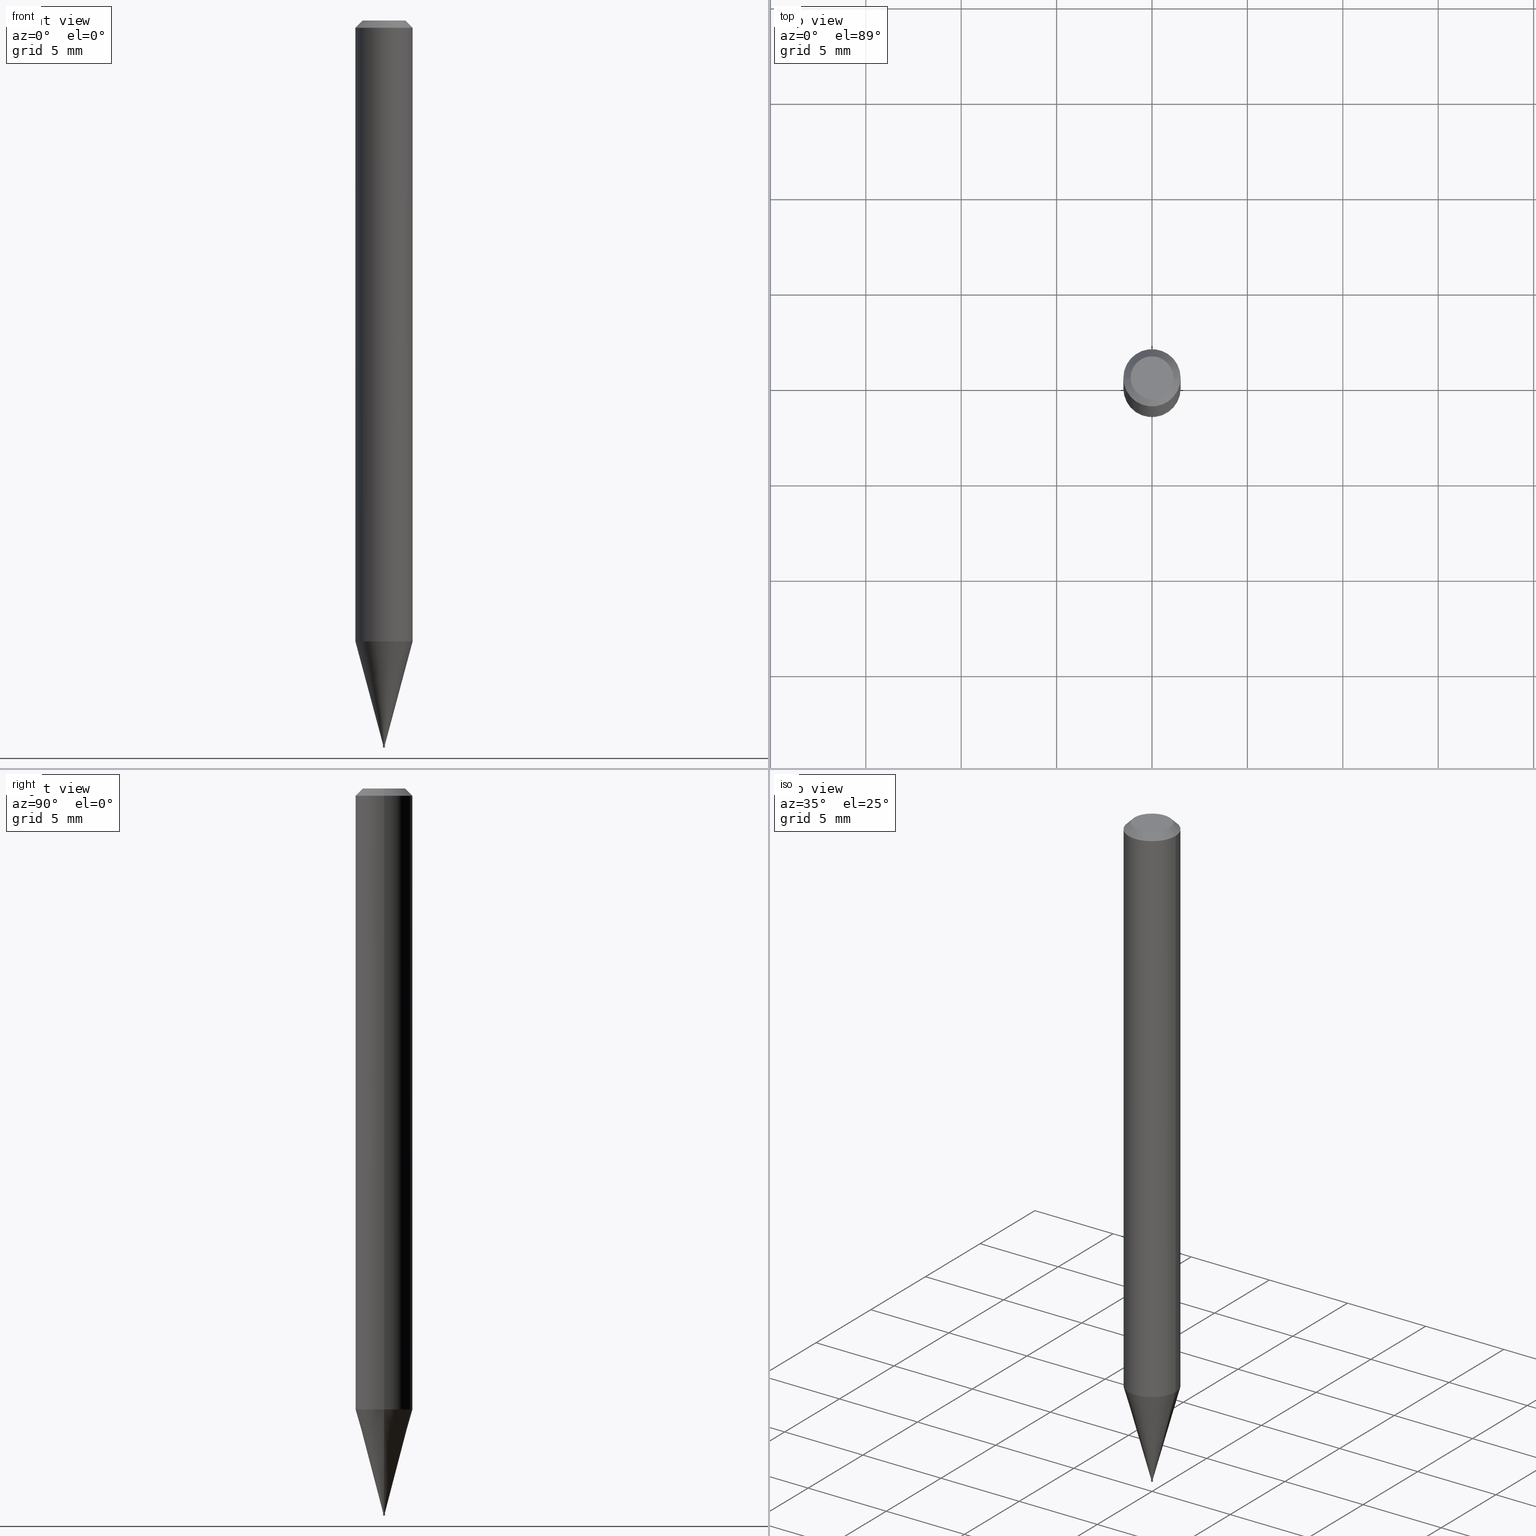
[diagram: canonical four-view strip — front | top / right | iso, engineering-drawing reading convention]
A machine part, canonical four-view strip (front | top / right | iso — engineering-drawing reading convention). The complete STEP part file that produces these views, byte-faithful:
ISO-10303-21;
HEADER;
FILE_DESCRIPTION (( 'STEP AP203' ),
    '1' );
FILE_NAME ('05002.STEP',
    '2024-03-14T17:36:36',
    ( '' ),
    ( '' ),
    'SwSTEP 2.0',
    'SolidWorks 2023',
    '' );
FILE_SCHEMA (( 'CONFIG_CONTROL_DESIGN' ));
ENDSEC;

DATA;
#1 = ORIENTED_EDGE ( 'NONE', *, *, #304, .T. ) ;
#2 = COORDINATED_UNIVERSAL_TIME_OFFSET ( 5, 0, .BEHIND. ) ;
#3 = ORIENTED_EDGE ( 'NONE', *, *, #143, .F. ) ;
#4 = DIRECTION ( 'NONE',  ( 1.000000000000000000, -6.982962677686266711E-15, 0.000000000000000000 ) ) ;
#5 = CIRCLE ( 'NONE', #436, 0.05904999999999999832 ) ;
#6 = CONICAL_SURFACE ( 'NONE', #362, 0.05904999999999999832, 0.7853981633974022047 ) ;
#7 = FACE_OUTER_BOUND ( 'NONE', #397, .T. ) ;
#8 = CARTESIAN_POINT ( 'NONE',  ( 3.576687321579069994E-29, -5.368277968210015545E-15, -1.500000000000000222 ) ) ;
#9 = ADVANCED_FACE ( 'NONE', ( #110 ), #335, .T. ) ;
#10 = FACE_OUTER_BOUND ( 'NONE', #461, .T. ) ;
#11 = CIRCLE ( 'NONE', #314, 0.05904999999999999832 ) ;
#12 = APPROVAL_DATE_TIME ( #43, #273 ) ;
#13 = DIRECTION ( 'NONE',  ( -2.445468806185136597E-29, 3.491481338843145583E-15, 1.000000000000000000 ) ) ;
#14 = CARTESIAN_POINT ( 'NONE',  ( 3.668203209277705088E-31, -5.237222008264718399E-17, -0.01499999999999999944 ) ) ;
#15 = ADVANCED_FACE ( 'NONE', ( #287 ), #435, .F. ) ;
#16 = CARTESIAN_POINT ( 'NONE',  ( 3.668203209277704895E-29, -5.237222008264718177E-15, -1.500000000000000222 ) ) ;
#17 = ORIENTED_EDGE ( 'NONE', *, *, #143, .T. ) ;
#18 = AXIS2_PLACEMENT_3D ( 'NONE', #16, #23, #51 ) ;
#19 = CARTESIAN_POINT ( 'NONE',  ( 0.05904999999999999138, -4.884931188144145618E-15, -1.280999898887817512 ) ) ;
#20 = ORIENTED_EDGE ( 'NONE', *, *, #126, .T. ) ;
#21 = DIRECTION ( 'NONE',  ( 2.445468806185136597E-29, -3.491481338843145583E-15, -1.000000000000000000 ) ) ;
#22 = EDGE_CURVE ( 'NONE', #245, #427, #211, .T. ) ;
#23 = DIRECTION ( 'NONE',  ( -2.445468806185136597E-29, 3.491481338843145583E-15, 1.000000000000000000 ) ) ;
#24 = ORIENTED_EDGE ( 'NONE', *, *, #413, .T. ) ;
#25 = EDGE_CURVE ( 'NONE', #208, #152, #5, .T. ) ;
#26 = APPROVAL_ROLE ( '' ) ;
#27 = AXIS2_PLACEMENT_3D ( 'NONE', #332, #168, #58 ) ;
#28 = ORIENTED_EDGE ( 'NONE', *, *, #406, .T. ) ;
#29 = APPROVAL_STATUS ( 'not_yet_approved' ) ;
#30 = CARTESIAN_POINT ( 'NONE',  ( 3.132645293456470975E-29, -4.472587242026771486E-15, -1.280999898887817512 ) ) ;
#31 =( LENGTH_UNIT ( ) NAMED_UNIT ( * ) SI_UNIT ( $, .METRE. ) );
#32 = DIRECTION ( 'NONE',  ( -2.445468806185136597E-29, 3.491481338843145583E-15, 1.000000000000000000 ) ) ;
#33 = EDGE_CURVE ( 'NONE', #104, #62, #267, .T. ) ;
#34 = CLOSED_SHELL ( 'NONE', ( #57, #127, #262, #418, #118, #9, #162, #370, #82, #358, #150, #444 ) ) ;
#35 = EDGE_LOOP ( 'NONE', ( #350, #133, #188, #423 ) ) ;
#36 = PERSON_AND_ORGANIZATION ( #109, #421 ) ;
#37 = DIRECTION ( 'NONE',  ( 1.000000000000000000, -6.982962677686433160E-15, 0.000000000000000000 ) ) ;
#38 = DIRECTION ( 'NONE',  ( 1.000000000000000000, -6.982962677686266711E-15, 0.000000000000000000 ) ) ;
#39 = DIRECTION ( 'NONE',  ( 1.000000000000000000, -6.982962677686266711E-15, 4.876176775795936353E-29 ) ) ;
#40 = AXIS2_PLACEMENT_3D ( 'NONE', #115, #196, #261 ) ;
#41 = VECTOR ( 'NONE', #175, 39.37007874015748854 ) ;
#42 = MANIFOLD_SOLID_BREP ( 'Body-Move/Copy2[1]', #354 ) ;
#43 = DATE_AND_TIME ( #219, #345 ) ;
#44 = CARTESIAN_POINT ( 'NONE',  ( -0.001949999999999999910, -5.213066554967809695E-15, -1.494099999999999984 ) ) ;
#45 = DIRECTION ( 'NONE',  ( 2.438088387897960049E-29, -3.491481338843145188E-15, -1.000000000000000000 ) ) ;
#46 = EDGE_CURVE ( 'NONE', #381, #152, #431, .T. ) ;
#47 = DIRECTION ( 'NONE',  ( 1.000000000000000000, -6.982962677686435527E-15, 0.000000000000000000 ) ) ;
#48 = VECTOR ( 'NONE', #419, 39.37007874015748143 ) ;
#49 = LOCAL_TIME ( 13, 36, 36.00000000000000000, #440 ) ;
#50 = DIRECTION ( 'NONE',  ( 1.000000000000000000, -6.982962677686266711E-15, 4.876176775795935793E-29 ) ) ;
#51 = DIRECTION ( 'NONE',  ( 1.000000000000000000, -6.982962677686144437E-15, 0.000000000000000000 ) ) ;
#52 = ORIENTED_EDGE ( 'NONE', *, *, #284, .F. ) ;
#53 = CARTESIAN_POINT ( 'NONE',  ( -0.001949999999999922715, -4.627889220789327606E-15, -1.494099999999999984 ) ) ;
#54 = ORIENTED_EDGE ( 'NONE', *, *, #238, .F. ) ;
#55 = AXIS2_PLACEMENT_3D ( 'NONE', #439, #13, #81 ) ;
#56 = CARTESIAN_POINT ( 'NONE',  ( -0.001949999999999922715, 1.385558334732140448E-17, -9.591923425996686822E-32 ) ) ;
#57 = ADVANCED_FACE ( 'NONE', ( #212 ), #317, .F. ) ;
#58 = DIRECTION ( 'NONE',  ( 1.000000000000000000, -6.982962677686159425E-15, 0.000000000000000000 ) ) ;
#59 = ORIENTED_EDGE ( 'NONE', *, *, #111, .T. ) ;
#60 = DIRECTION ( 'NONE',  ( -1.000000000000000000, 6.982962677686266711E-15, 0.000000000000000000 ) ) ;
#61 = EDGE_CURVE ( 'NONE', #432, #275, #113, .T. ) ;
#62 = VERTEX_POINT ( 'NONE', #367 ) ;
#63 = EDGE_CURVE ( 'NONE', #62, #104, #79, .T. ) ;
#64 = APPROVAL_DATE_TIME ( #240, #264 ) ;
#65 = AXIS2_PLACEMENT_3D ( 'NONE', #190, #283, #37 ) ;
#66 = VERTEX_POINT ( 'NONE', #407 ) ;
#67 = CIRCLE ( 'NONE', #466, 0.001950000000000004030 ) ;
#68 = CARTESIAN_POINT ( 'NONE',  ( 3.653774943321212865E-29, -5.216622268365544435E-15, -1.494099999999999984 ) ) ;
#69 = DIRECTION ( 'NONE',  ( -2.445468806185136877E-29, 3.491481338843145188E-15, 1.000000000000000000 ) ) ;
#70 = CARTESIAN_POINT ( 'NONE',  ( 1.361677722152475500E-17, 0.001949999999994783163, -1.494099999999999984 ) ) ;
#71 = APPLICATION_PROTOCOL_DEFINITION ( 'international standard', 'config_control_design', 1994, #117 ) ;
#72 = VERTEX_POINT ( 'NONE', #44 ) ;
#73 = CIRCLE ( 'NONE', #103, 0.001949999999999999910 ) ;
#74 = EDGE_CURVE ( 'NONE', #152, #208, #408, .T. ) ;
#75 = EDGE_LOOP ( 'NONE', ( #286, #234 ) ) ;
#76 = PERSON_AND_ORGANIZATION_ROLE ( 'design_supplier' ) ;
#77 = LINE ( 'NONE', #323, #428 ) ;
#78 = CARTESIAN_POINT ( 'NONE',  ( 3.653774943321212865E-29, -5.216622268365544435E-15, -1.494099999999999984 ) ) ;
#79 = CIRCLE ( 'NONE', #148, 0.001449999999999999900 ) ;
#80 = PERSON_AND_ORGANIZATION_ROLE ( 'classification_officer' ) ;
#81 = DIRECTION ( 'NONE',  ( 1.000000000000000000, -6.982962677686265922E-15, 4.957392940945096353E-29 ) ) ;
#82 = ADVANCED_FACE ( 'NONE', ( #10 ), #293, .F. ) ;
#83 = PERSON_AND_ORGANIZATION ( #109, #421 ) ;
#84 = CARTESIAN_POINT ( 'NONE',  ( -0.05904999999999999832, -1.842904245588369987E-15, -0.01499999999999999944 ) ) ;
#85 = DIRECTION ( 'NONE',  ( -2.445468806185136597E-29, 3.491481338843145583E-15, 1.000000000000000000 ) ) ;
#86 = CIRCLE ( 'NONE', #137, 0.001949999999999922715 ) ;
#87 = CC_DESIGN_APPROVAL ( #264, ( #236 ) ) ;
#88 = DIRECTION ( 'NONE',  ( -2.445468806185136597E-29, 3.491481338843145583E-15, 1.000000000000000000 ) ) ;
#89 = EDGE_LOOP ( 'NONE', ( #386, #463, #135, #341 ) ) ;
#90 = APPLICATION_CONTEXT ( 'configuration controlled 3d designs of mechanical parts and assemblies' ) ;
#91 = DIRECTION ( 'NONE',  ( -2.445468806185136597E-29, 3.491481338843145583E-15, 1.000000000000000000 ) ) ;
#92 = ORIENTED_EDGE ( 'NONE', *, *, #364, .F. ) ;
#93 = LINE ( 'NONE', #56, #243 ) ;
#94 = DESIGN_CONTEXT ( 'detailed design', #117, 'design' ) ;
#95 = VERTEX_POINT ( 'NONE', #191 ) ;
#96 = AXIS2_PLACEMENT_3D ( 'NONE', #446, #120, #4 ) ;
#97 = FACE_OUTER_BOUND ( 'NONE', #145, .T. ) ;
#98 = CARTESIAN_POINT ( 'NONE',  ( -0.001949999999999922715, -5.201020944348800926E-15, -1.493600000000000261 ) ) ;
#99 = ORIENTED_EDGE ( 'NONE', *, *, #385, .T. ) ;
#100 = PERSON_AND_ORGANIZATION ( #109, #421 ) ;
#101 = ORIENTED_EDGE ( 'NONE', *, *, #318, .T. ) ;
#102 = DIRECTION ( 'NONE',  ( 1.000000000000000000, -6.982962677686435527E-15, 0.000000000000000000 ) ) ;
#103 = AXIS2_PLACEMENT_3D ( 'NONE', #454, #377, #410 ) ;
#104 = VERTEX_POINT ( 'NONE', #325 ) ;
#105 = MECHANICAL_CONTEXT ( 'NONE', #90, 'mechanical' ) ;
#106 = CARTESIAN_POINT ( 'NONE',  ( 0.000000000000000000, 0.000000000000000000, 0.000000000000000000 ) ) ;
#107 = PERSON_AND_ORGANIZATION_ROLE ( 'design_owner' ) ;
#108 = CC_DESIGN_DATE_AND_TIME_ASSIGNMENT ( #260, #359, ( #336 ) ) ;
#109 = PERSON ( 'UNSPECIFIED', 'UNSPECIFIED', 'UNSPECIFIED', ('UNSPECIFIED'), ('UNSPECIFIED'), ('UNSPECIFIED') ) ;
#110 = FACE_OUTER_BOUND ( 'NONE', #347, .T. ) ;
#111 = EDGE_CURVE ( 'NONE', #62, #275, #167, .T. ) ;
#112 = ORIENTED_EDGE ( 'NONE', *, *, #304, .F. ) ;
#113 = CIRCLE ( 'NONE', #197, 0.001949999999999922715 ) ;
#114 = CC_DESIGN_SECURITY_CLASSIFICATION ( #336, ( #282 ) ) ;
#115 = CARTESIAN_POINT ( 'NONE',  ( 3.653774943321212865E-29, -5.216622268365544435E-15, -1.494099999999999984 ) ) ;
#116 = CC_DESIGN_PERSON_AND_ORGANIZATION_ASSIGNMENT ( #365, #80, ( #336 ) ) ;
#117 = APPLICATION_CONTEXT ( 'configuration controlled 3d designs of mechanical parts and assemblies' ) ;
#118 = ADVANCED_FACE ( 'NONE', ( #366 ), #295, .T. ) ;
#119 = PERSON_AND_ORGANIZATION_ROLE ( 'creator' ) ;
#120 = DIRECTION ( 'NONE',  ( -2.445468806185136597E-29, 3.491481338843145583E-15, 1.000000000000000000 ) ) ;
#121 = DATE_AND_TIME ( #253, #49 ) ;
#122 = FACE_OUTER_BOUND ( 'NONE', #89, .T. ) ;
#123 = PERSON_AND_ORGANIZATION ( #109, #421 ) ;
#124 = DIRECTION ( 'NONE',  ( 1.000000000000000000, -6.982962677686433160E-15, 0.000000000000000000 ) ) ;
#125 = CARTESIAN_POINT ( 'NONE',  ( 0.000000000000000000, 0.000000000000000000, 0.000000000000000000 ) ) ;
#126 = EDGE_CURVE ( 'NONE', #275, #432, #86, .T. ) ;
#127 = ADVANCED_FACE ( 'NONE', ( #442 ), #163, .T. ) ;
#128 = FACE_OUTER_BOUND ( 'NONE', #376, .T. ) ;
#129 = VECTOR ( 'NONE', #278, 39.37007874015748143 ) ;
#130 = CARTESIAN_POINT ( 'NONE',  ( -0.04404999999999999888, 3.337856159934058298E-16, 1.385648594563828748E-15 ) ) ;
#131 = ORIENTED_EDGE ( 'NONE', *, *, #46, .F. ) ;
#132 = CARTESIAN_POINT ( 'NONE',  ( 0.001950000000000002079, -1.361677722148823474E-17, 9.508544712802084947E-32 ) ) ;
#133 = ORIENTED_EDGE ( 'NONE', *, *, #318, .F. ) ;
#134 = CARTESIAN_POINT ( 'NONE',  ( 3.653774943321212865E-29, -5.216622268365544435E-15, -1.494099999999999984 ) ) ;
#135 = ORIENTED_EDGE ( 'NONE', *, *, #384, .T. ) ;
#136 = ADVANCED_FACE ( 'NONE', ( #399 ), #194, .F. ) ;
#137 = AXIS2_PLACEMENT_3D ( 'NONE', #363, #324, #199 ) ;
#138 = LOCAL_TIME ( 13, 36, 36.00000000000000000, #342 ) ;
#139 = CARTESIAN_POINT ( 'NONE',  ( 0.05904999999999999832, -4.647161662000212105E-16, -0.01499999999999999944 ) ) ;
#140 = ORIENTED_EDGE ( 'NONE', *, *, #299, .T. ) ;
#141 = DIRECTION ( 'NONE',  ( -2.445468806185136597E-29, 3.491481338843145583E-15, 1.000000000000000000 ) ) ;
#142 = VERTEX_POINT ( 'NONE', #160 ) ;
#143 = EDGE_CURVE ( 'NONE', #427, #152, #296, .T. ) ;
#144 = APPROVAL_ROLE ( '' ) ;
#145 = EDGE_LOOP ( 'NONE', ( #313, #415, #1, #52 ) ) ;
#146 = CARTESIAN_POINT ( 'NONE',  ( 0.000000000000000000, 0.000000000000000000, 0.000000000000000000 ) ) ;
#147 = VECTOR ( 'NONE', #200, 39.37007874015747433 ) ;
#148 = AXIS2_PLACEMENT_3D ( 'NONE', #403, #226, #124 ) ;
#149 = DIRECTION ( 'NONE',  ( 1.000000000000000000, -6.982962677686435527E-15, 0.000000000000000000 ) ) ;
#150 = ADVANCED_FACE ( 'NONE', ( #122 ), #344, .T. ) ;
#151 = APPLICATION_PROTOCOL_DEFINITION ( 'international standard', 'config_control_design', 1994, #90 ) ;
#152 = VERTEX_POINT ( 'NONE', #84 ) ;
#153 = CARTESIAN_POINT ( 'NONE',  ( -0.001950000000000002079, 1.385558334732196840E-17, -9.591923425997076558E-32 ) ) ;
#154 = ORIENTED_EDGE ( 'NONE', *, *, #61, .F. ) ;
#155 = FACE_OUTER_BOUND ( 'NONE', #458, .T. ) ;
#156 = VECTOR ( 'NONE', #255, 39.37007874015748854 ) ;
#157 = CIRCLE ( 'NONE', #258, 0.001949999999999922715 ) ;
#158 = EDGE_CURVE ( 'NONE', #381, #417, #387, .T. ) ;
#159 = DIRECTION ( 'NONE',  ( -2.445468806185136877E-29, 3.491481338843145188E-15, 1.000000000000000000 ) ) ;
#160 = CARTESIAN_POINT ( 'NONE',  ( 0.001949999999999999910, -5.230239045587032162E-15, -1.494099999999999984 ) ) ;
#161 = DIRECTION ( 'NONE',  ( 1.000000000000000000, -6.982962677686435527E-15, 0.000000000000000000 ) ) ;
#162 = ADVANCED_FACE ( 'NONE', ( #7 ), #328, .T. ) ;
#163 = CONICAL_SURFACE ( 'NONE', #40, 0.001449999999999999900, 0.7853981633974720378 ) ;
#164 = LOCAL_TIME ( 13, 36, 36.00000000000000000, #288 ) ;
#165 = DIMENSIONAL_EXPONENTS ( 1.000000000000000000, 0.000000000000000000, 0.000000000000000000, 0.000000000000000000, 0.000000000000000000, 0.000000000000000000, 0.000000000000000000 ) ;
#166 = ADVANCED_FACE ( 'NONE', ( #155 ), #222, .T. ) ;
#167 = LINE ( 'NONE', #263, #156 ) ;
#168 = DIRECTION ( 'NONE',  ( -2.445468806185136597E-29, 3.491481338843145583E-15, 1.000000000000000000 ) ) ;
#169 = CARTESIAN_POINT ( 'NONE',  ( -0.001949999999999922715, -5.202766685018222429E-15, -1.494099999999999984 ) ) ;
#170 = EDGE_LOOP ( 'NONE', ( #101, #394, #320, #92 ) ) ;
#171 = CIRCLE ( 'NONE', #184, 0.001949999999999922715 ) ;
#172 = LOCAL_TIME ( 13, 36, 36.00000000000000000, #2 ) ;
#173 = FACE_OUTER_BOUND ( 'NONE', #334, .T. ) ;
#174 = EDGE_LOOP ( 'NONE', ( #383, #28, #20, #390 ) ) ;
#175 = DIRECTION ( 'NONE',  ( 0.7071067811865642261, -2.468850131082432188E-15, 0.7071067811865306973 ) ) ;
#176 = EDGE_CURVE ( 'NONE', #427, #245, #11, .T. ) ;
#177 = DIRECTION ( 'NONE',  ( -1.000000000000000000, 6.982962677686266711E-15, 0.000000000000000000 ) ) ;
#178 = ORIENTED_EDGE ( 'NONE', *, *, #409, .T. ) ;
#179 = CALENDAR_DATE ( 2024, 14, 3 ) ;
#180 = DIRECTION ( 'NONE',  ( 1.000000000000000000, -6.982962677686267499E-15, 4.876176775795936353E-29 ) ) ;
#181 = EDGE_LOOP ( 'NONE', ( #251, #59, #154, #392 ) ) ;
#182 = DIRECTION ( 'NONE',  ( -2.445468806185136597E-29, 3.491481338843145583E-15, 1.000000000000000000 ) ) ;
#183 = CARTESIAN_POINT ( 'NONE',  ( 3.668203209277705088E-31, -5.237222008264718399E-17, -0.01499999999999999944 ) ) ;
#184 = AXIS2_PLACEMENT_3D ( 'NONE', #229, #300, #271 ) ;
#185 = APPROVAL_PERSON_ORGANIZATION ( #100, #353, #144 ) ;
#186 = EDGE_LOOP ( 'NONE', ( #452, #17, #230, #310 ) ) ;
#187 = CARTESIAN_POINT ( 'NONE',  ( 0.000000000000000000, 0.000000000000000000, 0.000000000000000000 ) ) ;
#188 = ORIENTED_EDGE ( 'NONE', *, *, #205, .T. ) ;
#189 = CALENDAR_DATE ( 2024, 14, 3 ) ;
#190 = CARTESIAN_POINT ( 'NONE',  ( 3.653774943321212865E-29, -5.216622268365544435E-15, -1.494099999999999984 ) ) ;
#191 = CARTESIAN_POINT ( 'NONE',  ( 0.001949999999999922715, -5.230239045587032162E-15, -1.494099999999999984 ) ) ;
#192 = VECTOR ( 'NONE', #233, 39.37007874015748143 ) ;
#193 = CARTESIAN_POINT ( 'NONE',  ( 3.075995059520799729E-16, 0.04404999999999999888, 5.390245443058748806E-16 ) ) ;
#194 = PLANE ( 'NONE',  #420 ) ;
#195 = CC_DESIGN_PERSON_AND_ORGANIZATION_ASSIGNMENT ( #326, #76, ( #282 ) ) ;
#196 = DIRECTION ( 'NONE',  ( -2.445468806185136597E-29, 3.491481338843145583E-15, 1.000000000000000000 ) ) ;
#197 = AXIS2_PLACEMENT_3D ( 'NONE', #247, #280, #47 ) ;
#198 = VECTOR ( 'NONE', #69, 39.37007874015748143 ) ;
#199 = DIRECTION ( 'NONE',  ( 1.000000000000000000, -6.982962677686435527E-15, 0.000000000000000000 ) ) ;
#200 = DIRECTION ( 'NONE',  ( 0.2588190451025213501, 1.565188264969621968E-15, 0.9659258262890682012 ) ) ;
#201 = ORIENTED_EDGE ( 'NONE', *, *, #176, .T. ) ;
#202 = DIRECTION ( 'NONE',  ( 2.445468806185136597E-29, -3.491481338843145583E-15, -1.000000000000000000 ) ) ;
#203 = ORIENTED_EDGE ( 'NONE', *, *, #371, .T. ) ;
#204 = AXIS2_PLACEMENT_3D ( 'NONE', #125, #254, #50 ) ;
#205 = EDGE_CURVE ( 'NONE', #95, #432, #77, .T. ) ;
#206 = DIRECTION ( 'NONE',  ( -2.445468806185136877E-29, 3.491481338843145188E-15, 1.000000000000000000 ) ) ;
#207 = CYLINDRICAL_SURFACE ( 'NONE', #242, 0.001950000000000002079 ) ;
#208 = VERTEX_POINT ( 'NONE', #139 ) ;
#209 = PERSON_AND_ORGANIZATION_ROLE ( 'creator' ) ;
#210 = VERTEX_POINT ( 'NONE', #53 ) ;
#211 = CIRCLE ( 'NONE', #256, 0.05904999999999999832 ) ;
#212 = FACE_OUTER_BOUND ( 'NONE', #174, .T. ) ;
#213 = ORIENTED_EDGE ( 'NONE', *, *, #238, .T. ) ;
#214 = CYLINDRICAL_SURFACE ( 'NONE', #250, 0.05904999999999999832 ) ;
#215 = DIRECTION ( 'NONE',  ( 1.000000000000000000, -6.982962677686273021E-15, 0.000000000000000000 ) ) ;
#216 = FACE_OUTER_BOUND ( 'NONE', #186, .T. ) ;
#217 = AXIS2_PLACEMENT_3D ( 'NONE', #360, #257, #405 ) ;
#218 = DIRECTION ( 'NONE',  ( -2.445468806185136597E-29, 3.491481338843145583E-15, 1.000000000000000000 ) ) ;
#219 = CALENDAR_DATE ( 2024, 14, 3 ) ;
#220 = DIRECTION ( 'NONE',  ( 2.438088387897960049E-29, -3.491481338843145188E-15, -1.000000000000000000 ) ) ;
#221 = DIRECTION ( 'NONE',  ( -2.445468806185136877E-29, 3.491481338843145188E-15, 1.000000000000000000 ) ) ;
#222 = CYLINDRICAL_SURFACE ( 'NONE', #204, 0.001950000000000002079 ) ;
#223 = CIRCLE ( 'NONE', #27, 0.001949999999999999910 ) ;
#224 = APPROVAL_STATUS ( 'not_yet_approved' ) ;
#225 = DIRECTION ( 'NONE',  ( 1.000000000000000000, -6.982962677686273021E-15, 0.000000000000000000 ) ) ;
#226 = DIRECTION ( 'NONE',  ( -2.445468806185136597E-29, 3.491481338843145583E-15, 1.000000000000000000 ) ) ;
#227 = ADVANCED_FACE ( 'NONE', ( #97 ), #207, .T. ) ;
#228 = DIRECTION ( 'NONE',  ( -2.438088387897960049E-29, 3.491481338843145188E-15, 1.000000000000000000 ) ) ;
#229 = CARTESIAN_POINT ( 'NONE',  ( 3.653774943321212865E-29, -5.216622268365544435E-15, -1.494099999999999984 ) ) ;
#230 = ORIENTED_EDGE ( 'NONE', *, *, #25, .F. ) ;
#231 = DIRECTION ( 'NONE',  ( 1.000000000000000000, -6.982962677686144437E-15, 0.000000000000000000 ) ) ;
#232 = ORIENTED_EDGE ( 'NONE', *, *, #33, .F. ) ;
#233 = DIRECTION ( 'NONE',  ( 0.7071067811865149322, -7.319954787623147183E-15, -0.7071067811865801023 ) ) ;
#234 = ORIENTED_EDGE ( 'NONE', *, *, #340, .F. ) ;
#235 = DIRECTION ( 'NONE',  ( 1.000000000000000000, -6.982962677686266711E-15, 4.876176775795935793E-29 ) ) ;
#236 = PRODUCT_DEFINITION ( 'UNKNOWN', '', #282, #94 ) ;
#237 = CARTESIAN_POINT ( 'NONE',  ( -3.388560414340124120E-44, 4.837966210113847534E-30, 1.385648594563830917E-15 ) ) ;
#238 = EDGE_CURVE ( 'NONE', #417, #208, #339, .T. ) ;
#239 = ORIENTED_EDGE ( 'NONE', *, *, #74, .T. ) ;
#240 = DATE_AND_TIME ( #434, #172 ) ;
#241 = ORIENTED_EDGE ( 'NONE', *, *, #46, .T. ) ;
#242 = AXIS2_PLACEMENT_3D ( 'NONE', #375, #276, #235 ) ;
#243 = VECTOR ( 'NONE', #206, 39.37007874015748143 ) ;
#244 = CARTESIAN_POINT ( 'NONE',  ( -0.05904999999999999138, -4.053011756560431993E-15, -1.280999898887817512 ) ) ;
#245 = VERTEX_POINT ( 'NONE', #19 ) ;
#246 =( NAMED_UNIT ( * ) SI_UNIT ( $, .STERADIAN. ) SOLID_ANGLE_UNIT ( ) );
#247 = CARTESIAN_POINT ( 'NONE',  ( 3.652552208918120063E-29, -5.214876527696122931E-15, -1.493600000000000261 ) ) ;
#248 = ORIENTED_EDGE ( 'NONE', *, *, #284, .T. ) ;
#249 = PERSON_AND_ORGANIZATION ( #109, #421 ) ;
#250 = AXIS2_PLACEMENT_3D ( 'NONE', #187, #351, #391 ) ;
#251 = ORIENTED_EDGE ( 'NONE', *, *, #33, .T. ) ;
#252 = CC_DESIGN_PERSON_AND_ORGANIZATION_ASSIGNMENT ( #249, #209, ( #236 ) ) ;
#253 = CALENDAR_DATE ( 2024, 14, 3 ) ;
#254 = DIRECTION ( 'NONE',  ( -2.445468806185136597E-29, 3.491481338843145583E-15, 1.000000000000000000 ) ) ;
#255 = DIRECTION ( 'NONE',  ( -0.7071067811865642261, 7.493145998870414114E-15, 0.7071067811865306973 ) ) ;
#256 = AXIS2_PLACEMENT_3D ( 'NONE', #30, #32, #215 ) ;
#257 = DIRECTION ( 'NONE',  ( -2.445468806185136597E-29, 3.491481338843145583E-15, 1.000000000000000000 ) ) ;
#258 = AXIS2_PLACEMENT_3D ( 'NONE', #337, #182, #102 ) ;
#259 = UNCERTAINTY_MEASURE_WITH_UNIT (LENGTH_MEASURE( 1.000000000000000082E-05 ), #426, 'distance_accuracy_value', 'NONE');
#260 = DATE_AND_TIME ( #189, #164 ) ;
#261 = DIRECTION ( 'NONE',  ( 1.000000000000000000, -6.982962677686433160E-15, 0.000000000000000000 ) ) ;
#262 = ADVANCED_FACE ( 'NONE', ( #372 ), #457, .T. ) ;
#263 = CARTESIAN_POINT ( 'NONE',  ( -0.001449999999999999900, -5.206319398697022539E-15, -1.494099999999999984 ) ) ;
#264 = APPROVAL ( #319, 'UNSPECIFIED' ) ;
#265 = CARTESIAN_POINT ( 'NONE',  ( -0.001950000000000004030, -5.213066554967809695E-15, -1.500000000000000222 ) ) ;
#266 = EDGE_LOOP ( 'NONE', ( #338, #248 ) ) ;
#267 = CIRCLE ( 'NONE', #65, 0.001449999999999999900 ) ;
#268 = APPROVAL_PERSON_ORGANIZATION ( #83, #273, #292 ) ;
#269 = LINE ( 'NONE', #416, #41 ) ;
#270 = ORIENTED_EDGE ( 'NONE', *, *, #63, .F. ) ;
#271 = DIRECTION ( 'NONE',  ( 1.000000000000000000, -6.982962677686435527E-15, 0.000000000000000000 ) ) ;
#272 = ORIENTED_EDGE ( 'NONE', *, *, #329, .F. ) ;
#273 = APPROVAL ( #224, 'UNSPECIFIED' ) ;
#274 = CARTESIAN_POINT ( 'NONE',  ( 0.001949999999999922715, -5.230239045587032162E-15, -1.494099999999999984 ) ) ;
#275 = VERTEX_POINT ( 'NONE', #98 ) ;
#276 = DIRECTION ( 'NONE',  ( -2.445468806185136597E-29, 3.491481338843145583E-15, 1.000000000000000000 ) ) ;
#277 = ORIENTED_EDGE ( 'NONE', *, *, #158, .T. ) ;
#278 = DIRECTION ( 'NONE',  ( -0.7071067811865149322, 2.468850131081915484E-15, -0.7071067811865801023 ) ) ;
#279 = LENGTH_MEASURE_WITH_UNIT ( LENGTH_MEASURE( 0.02539999999999999897 ), #31 );
#280 = DIRECTION ( 'NONE',  ( -2.445468806185136597E-29, 3.491481338843145583E-15, 1.000000000000000000 ) ) ;
#281 = AXIS2_PLACEMENT_3D ( 'NONE', #134, #382, #302 ) ;
#282 = PRODUCT_DEFINITION_FORMATION_WITH_SPECIFIED_SOURCE ( 'ANY', '', #433, .NOT_KNOWN. ) ;
#283 = DIRECTION ( 'NONE',  ( -2.445468806185136597E-29, 3.491481338843145583E-15, 1.000000000000000000 ) ) ;
#284 = EDGE_CURVE ( 'NONE', #72, #142, #73, .T. ) ;
#285 = PERSON_AND_ORGANIZATION ( #109, #421 ) ;
#286 = ORIENTED_EDGE ( 'NONE', *, *, #385, .F. ) ;
#287 = FACE_OUTER_BOUND ( 'NONE', #266, .T. ) ;
#288 = COORDINATED_UNIVERSAL_TIME_OFFSET ( 5, 0, .BEHIND. ) ;
#289 = CARTESIAN_POINT ( 'NONE',  ( 3.132645293456470975E-29, -4.472587242026771486E-15, -1.280999898887817512 ) ) ;
#290 = CARTESIAN_POINT ( 'NONE',  ( -0.05904999999999999832, 4.195754854663391478E-16, -2.904631170795521892E-30 ) ) ;
#291 = CC_DESIGN_PERSON_AND_ORGANIZATION_ASSIGNMENT ( #285, #107, ( #433 ) ) ;
#292 = APPROVAL_ROLE ( '' ) ;
#293 = PLANE ( 'NONE',  #378 ) ;
#294 = APPROVAL_DATE_TIME ( #121, #353 ) ;
#295 = CONICAL_SURFACE ( 'NONE', #322, 0.001949999999999922715, 0.2617993877991500740 ) ;
#296 = LINE ( 'NONE', #290, #401 ) ;
#297 = CARTESIAN_POINT ( 'NONE',  ( 0.000000000000000000, 0.000000000000000000, 0.000000000000000000 ) ) ;
#298 = DIRECTION ( 'NONE',  ( -2.445468806185136877E-29, 3.491481338843145188E-15, 1.000000000000000000 ) ) ;
#299 = EDGE_CURVE ( 'NONE', #417, #381, #361, .T. ) ;
#300 = DIRECTION ( 'NONE',  ( -2.445468806185136597E-29, 3.491481338843145583E-15, 1.000000000000000000 ) ) ;
#301 = ORIENTED_EDGE ( 'NONE', *, *, #364, .T. ) ;
#302 = DIRECTION ( 'NONE',  ( 1.000000000000000000, -6.982962677686265922E-15, 4.876176775795935793E-29 ) ) ;
#303 = DIRECTION ( 'NONE',  ( 1.000000000000000000, -6.982962677686265922E-15, 4.957392940945096353E-29 ) ) ;
#304 = EDGE_CURVE ( 'NONE', #66, #142, #380, .T. ) ;
#305 = PLANE ( 'NONE',  #281 ) ;
#306 = ORIENTED_EDGE ( 'NONE', *, *, #374, .F. ) ;
#307 = VECTOR ( 'NONE', #298, 39.37007874015748143 ) ;
#308 = CC_DESIGN_APPROVAL ( #273, ( #336 ) ) ;
#309 = CYLINDRICAL_SURFACE ( 'NONE', #437, 0.001949999999999922715 ) ;
#310 = ORIENTED_EDGE ( 'NONE', *, *, #371, .F. ) ;
#311 = DIRECTION ( 'NONE',  ( 1.000000000000000000, 0.000000000000000000, 0.000000000000000000 ) ) ;
#312 = DIRECTION ( 'NONE',  ( -2.445468806185136597E-29, 3.491481338843145583E-15, 1.000000000000000000 ) ) ;
#313 = ORIENTED_EDGE ( 'NONE', *, *, #413, .F. ) ;
#314 = AXIS2_PLACEMENT_3D ( 'NONE', #289, #438, #225 ) ;
#315 = VECTOR ( 'NONE', #451, 39.37007874015747433 ) ;
#316 = LINE ( 'NONE', #153, #198 ) ;
#317 = CYLINDRICAL_SURFACE ( 'NONE', #465, 0.001949999999999922715 ) ;
#318 = EDGE_CURVE ( 'NONE', #95, #210, #171, .T. ) ;
#319 = APPROVAL_STATUS ( 'not_yet_approved' ) ;
#320 = ORIENTED_EDGE ( 'NONE', *, *, #22, .F. ) ;
#321 = CARTESIAN_POINT ( 'NONE',  ( -0.05904999999999999832, 3.599717260347268549E-16, -0.01499999999999999944 ) ) ;
#322 = AXIS2_PLACEMENT_3D ( 'NONE', #78, #447, #161 ) ;
#323 = CARTESIAN_POINT ( 'NONE',  ( 0.001949999999999922715, -1.361677722148768161E-17, 9.508544712801698495E-32 ) ) ;
#324 = DIRECTION ( 'NONE',  ( -2.445468806185136597E-29, 3.491481338843145583E-15, 1.000000000000000000 ) ) ;
#325 = CARTESIAN_POINT ( 'NONE',  ( 0.001449999999999999900, -5.226747564248189155E-15, -1.494099999999999984 ) ) ;
#326 = PERSON_AND_ORGANIZATION ( #109, #421 ) ;
#327 = CIRCLE ( 'NONE', #18, 0.001950000000000004030 ) ;
#328 = CYLINDRICAL_SURFACE ( 'NONE', #395, 0.05904999999999999832 ) ;
#329 = EDGE_CURVE ( 'NONE', #142, #72, #223, .T. ) ;
#330 = LINE ( 'NONE', #274, #147 ) ;
#331 = LINE ( 'NONE', #169, #315 ) ;
#332 = CARTESIAN_POINT ( 'NONE',  ( 3.653774943321212865E-29, -5.216622268365544435E-15, -1.494099999999999984 ) ) ;
#333 = AXIS2_PLACEMENT_3D ( 'NONE', #237, #88, #303 ) ;
#334 = EDGE_LOOP ( 'NONE', ( #232, #270 ) ) ;
#335 = CONICAL_SURFACE ( 'NONE', #368, 0.001949999999999922715, 0.2617993877991500740 ) ;
#336 = SECURITY_CLASSIFICATION ( '', '', #404 ) ;
#337 = CARTESIAN_POINT ( 'NONE',  ( 3.653774943321212865E-29, -5.216622268365544435E-15, -1.494099999999999984 ) ) ;
#338 = ORIENTED_EDGE ( 'NONE', *, *, #329, .T. ) ;
#339 = LINE ( 'NONE', #448, #192 ) ;
#340 = EDGE_CURVE ( 'NONE', #373, #66, #327, .T. ) ;
#341 = ORIENTED_EDGE ( 'NONE', *, *, #126, .F. ) ;
#342 = COORDINATED_UNIVERSAL_TIME_OFFSET ( 5, 0, .BEHIND. ) ;
#343 = ORIENTED_EDGE ( 'NONE', *, *, #74, .F. ) ;
#344 = CONICAL_SURFACE ( 'NONE', #217, 0.001449999999999999900, 0.7853981633974720378 ) ;
#345 = LOCAL_TIME ( 13, 36, 36.00000000000000000, #356 ) ;
#346 = CARTESIAN_POINT ( 'NONE',  ( 0.04404999999999999888, -3.798447818264435920E-16, 1.385648594563833284E-15 ) ) ;
#347 = EDGE_LOOP ( 'NONE', ( #306, #178, #301, #355 ) ) ;
#348 = MANIFOLD_SOLID_BREP ( 'Body-Move/Copy2[2]', #34 ) ;
#349 = CARTESIAN_POINT ( 'NONE',  ( 0.000000000000000000, 0.000000000000000000, 0.000000000000000000 ) ) ;
#350 = ORIENTED_EDGE ( 'NONE', *, *, #406, .F. ) ;
#351 = DIRECTION ( 'NONE',  ( -2.445468806185136597E-29, 3.491481338843145583E-15, 1.000000000000000000 ) ) ;
#352 = DIRECTION ( 'NONE',  ( 1.000000000000000000, -6.982962677686267499E-15, 4.876176775795936353E-29 ) ) ;
#353 = APPROVAL ( #29, 'UNSPECIFIED' ) ;
#354 = CLOSED_SHELL ( 'NONE', ( #166, #136, #227, #15 ) ) ;
#355 = ORIENTED_EDGE ( 'NONE', *, *, #176, .F. ) ;
#356 = COORDINATED_UNIVERSAL_TIME_OFFSET ( 5, 0, .BEHIND. ) ;
#357 = DIRECTION ( 'NONE',  ( -1.000000000000000000, 6.982962677686265922E-15, -4.876176775795935793E-29 ) ) ;
#358 = ADVANCED_FACE ( 'NONE', ( #173 ), #305, .F. ) ;
#359 = DATE_TIME_ROLE ( 'classification_date' ) ;
#360 = CARTESIAN_POINT ( 'NONE',  ( 3.653774943321212865E-29, -5.216622268365544435E-15, -1.494099999999999984 ) ) ;
#361 = CIRCLE ( 'NONE', #333, 0.04404999999999999888 ) ;
#362 = AXIS2_PLACEMENT_3D ( 'NONE', #14, #21, #177 ) ;
#363 = CARTESIAN_POINT ( 'NONE',  ( 3.652552208918120063E-29, -5.214876527696122931E-15, -1.493600000000000261 ) ) ;
#364 = EDGE_CURVE ( 'NONE', #95, #245, #330, .T. ) ;
#365 = PERSON_AND_ORGANIZATION ( #109, #421 ) ;
#366 = FACE_OUTER_BOUND ( 'NONE', #170, .T. ) ;
#367 = CARTESIAN_POINT ( 'NONE',  ( -0.001449999999999999900, -5.203670171522912127E-15, -1.494099999999999984 ) ) ;
#368 = AXIS2_PLACEMENT_3D ( 'NONE', #68, #218, #149 ) ;
#369 = DIRECTION ( 'NONE',  ( -1.000000000000000000, 6.982962677686265922E-15, -4.876176775795935793E-29 ) ) ;
#370 = ADVANCED_FACE ( 'NONE', ( #128 ), #6, .T. ) ;
#371 = EDGE_CURVE ( 'NONE', #245, #208, #414, .T. ) ;
#372 = FACE_OUTER_BOUND ( 'NONE', #464, .T. ) ;
#373 = VERTEX_POINT ( 'NONE', #265 ) ;
#374 = EDGE_CURVE ( 'NONE', #210, #427, #331, .T. ) ;
#375 = CARTESIAN_POINT ( 'NONE',  ( 0.000000000000000000, 0.000000000000000000, 0.000000000000000000 ) ) ;
#376 = EDGE_LOOP ( 'NONE', ( #54, #455, #241, #239 ) ) ;
#377 = DIRECTION ( 'NONE',  ( -2.445468806185136597E-29, 3.491481338843145583E-15, 1.000000000000000000 ) ) ;
#378 = AXIS2_PLACEMENT_3D ( 'NONE', #193, #45, #369 ) ;
#379 = ORIENTED_EDGE ( 'NONE', *, *, #25, .T. ) ;
#380 = LINE ( 'NONE', #132, #48 ) ;
#381 = VERTEX_POINT ( 'NONE', #130 ) ;
#382 = DIRECTION ( 'NONE',  ( -2.438088387897960049E-29, 3.491481338843145188E-15, 1.000000000000000000 ) ) ;
#383 = ORIENTED_EDGE ( 'NONE', *, *, #409, .F. ) ;
#384 = EDGE_CURVE ( 'NONE', #104, #432, #269, .T. ) ;
#385 = EDGE_CURVE ( 'NONE', #66, #373, #67, .T. ) ;
#386 = ORIENTED_EDGE ( 'NONE', *, *, #111, .F. ) ;
#387 = CIRCLE ( 'NONE', #55, 0.04404999999999999888 ) ;
#388 = AXIS2_PLACEMENT_3D ( 'NONE', #349, #430, #311 ) ;
#389 =( NAMED_UNIT ( * ) PLANE_ANGLE_UNIT ( ) SI_UNIT ( $, .RADIAN. ) );
#390 = ORIENTED_EDGE ( 'NONE', *, *, #205, .F. ) ;
#391 = DIRECTION ( 'NONE',  ( 1.000000000000000000, -6.982962677686266711E-15, 4.876176775795936353E-29 ) ) ;
#392 = ORIENTED_EDGE ( 'NONE', *, *, #384, .F. ) ;
#393 = FACE_OUTER_BOUND ( 'NONE', #35, .T. ) ;
#394 = ORIENTED_EDGE ( 'NONE', *, *, #374, .T. ) ;
#395 = AXIS2_PLACEMENT_3D ( 'NONE', #297, #85, #39 ) ;
#396 = CARTESIAN_POINT ( 'NONE',  ( 0.001949999999999922715, -5.228493304917610659E-15, -1.493600000000000261 ) ) ;
#397 = EDGE_LOOP ( 'NONE', ( #3, #201, #203, #343 ) ) ;
#398 = CC_DESIGN_PERSON_AND_ORGANIZATION_ASSIGNMENT ( #123, #119, ( #282 ) ) ;
#399 = FACE_OUTER_BOUND ( 'NONE', #75, .T. ) ;
#400 = DIRECTION ( 'NONE',  ( 1.000000000000000000, -6.982962677686265922E-15, 4.876176775795935793E-29 ) ) ;
#401 = VECTOR ( 'NONE', #221, 39.37007874015748143 ) ;
#402 = CC_DESIGN_APPROVAL ( #353, ( #282 ) ) ;
#403 = CARTESIAN_POINT ( 'NONE',  ( 3.653774943321212865E-29, -5.216622268365544435E-15, -1.494099999999999984 ) ) ;
#404 = SECURITY_CLASSIFICATION_LEVEL ( 'unclassified' ) ;
#405 = DIRECTION ( 'NONE',  ( 1.000000000000000000, -6.982962677686433160E-15, 0.000000000000000000 ) ) ;
#406 = EDGE_CURVE ( 'NONE', #210, #275, #93, .T. ) ;
#407 = CARTESIAN_POINT ( 'NONE',  ( 0.001950000000000004030, -5.250838785486206693E-15, -1.500000000000000222 ) ) ;
#408 = CIRCLE ( 'NONE', #96, 0.05904999999999999832 ) ;
#409 = EDGE_CURVE ( 'NONE', #210, #95, #157, .T. ) ;
#410 = DIRECTION ( 'NONE',  ( 1.000000000000000000, -6.982962677686159425E-15, 0.000000000000000000 ) ) ;
#411 =( GEOMETRIC_REPRESENTATION_CONTEXT ( 3 ) GLOBAL_UNCERTAINTY_ASSIGNED_CONTEXT ( ( #259 ) ) GLOBAL_UNIT_ASSIGNED_CONTEXT ( ( #426, #389, #246 ) ) REPRESENTATION_CONTEXT ( 'NONE', 'WORKASPACE' ) );
#412 = ORIENTED_EDGE ( 'NONE', *, *, #299, .F. ) ;
#413 = EDGE_CURVE ( 'NONE', #373, #72, #316, .T. ) ;
#414 = LINE ( 'NONE', #456, #307 ) ;
#415 = ORIENTED_EDGE ( 'NONE', *, *, #340, .T. ) ;
#416 = CARTESIAN_POINT ( 'NONE',  ( 0.001449999999999999900, -5.226747564248189155E-15, -1.494099999999999984 ) ) ;
#417 = VERTEX_POINT ( 'NONE', #346 ) ;
#418 = ADVANCED_FACE ( 'NONE', ( #216 ), #214, .T. ) ;
#419 = DIRECTION ( 'NONE',  ( -2.445468806185136877E-29, 3.491481338843145188E-15, 1.000000000000000000 ) ) ;
#420 = AXIS2_PLACEMENT_3D ( 'NONE', #8, #228, #400 ) ;
#421 = ORGANIZATION ( 'UNSPECIFIED', 'UNSPECIFIED', '' ) ;
#422 = CARTESIAN_POINT ( 'NONE',  ( 3.668203209277705088E-31, -5.237222008264718399E-17, -0.01499999999999999944 ) ) ;
#423 = ORIENTED_EDGE ( 'NONE', *, *, #61, .T. ) ;
#424 = DATE_TIME_ROLE ( 'creation_date' ) ;
#425 = DIRECTION ( 'NONE',  ( -2.445468806185136597E-29, 3.491481338843145583E-15, 1.000000000000000000 ) ) ;
#426 =( CONVERSION_BASED_UNIT ( 'INCH', #279 ) LENGTH_UNIT ( ) NAMED_UNIT ( #165 ) );
#427 = VERTEX_POINT ( 'NONE', #244 ) ;
#428 = VECTOR ( 'NONE', #159, 39.37007874015748143 ) ;
#429 = CC_DESIGN_DATE_AND_TIME_ASSIGNMENT ( #460, #424, ( #236 ) ) ;
#430 = DIRECTION ( 'NONE',  ( 0.000000000000000000, 0.000000000000000000, 1.000000000000000000 ) ) ;
#431 = LINE ( 'NONE', #321, #129 ) ;
#432 = VERTEX_POINT ( 'NONE', #396 ) ;
#433 = PRODUCT ( '05002', '05002', '', ( #105 ) ) ;
#434 = CALENDAR_DATE ( 2024, 14, 3 ) ;
#435 = PLANE ( 'NONE',  #443 ) ;
#436 = AXIS2_PLACEMENT_3D ( 'NONE', #183, #425, #38 ) ;
#437 = AXIS2_PLACEMENT_3D ( 'NONE', #146, #141, #180 ) ;
#438 = DIRECTION ( 'NONE',  ( -2.445468806185136597E-29, 3.491481338843145583E-15, 1.000000000000000000 ) ) ;
#439 = CARTESIAN_POINT ( 'NONE',  ( -3.388560414340124120E-44, 4.837966210113847534E-30, 1.385648594563830917E-15 ) ) ;
#440 = COORDINATED_UNIVERSAL_TIME_OFFSET ( 5, 0, .BEHIND. ) ;
#441 = ADVANCED_BREP_SHAPE_REPRESENTATION ( '05002', ( #42, #348, #388 ), #411 ) ;
#442 = FACE_OUTER_BOUND ( 'NONE', #181, .T. ) ;
#443 = AXIS2_PLACEMENT_3D ( 'NONE', #70, #220, #357 ) ;
#444 = ADVANCED_FACE ( 'NONE', ( #393 ), #309, .F. ) ;
#445 = SHAPE_DEFINITION_REPRESENTATION ( #462, #441 ) ;
#446 = CARTESIAN_POINT ( 'NONE',  ( 3.668203209277705088E-31, -5.237222008264718399E-17, -0.01499999999999999944 ) ) ;
#447 = DIRECTION ( 'NONE',  ( -2.445468806185136597E-29, 3.491481338843145583E-15, 1.000000000000000000 ) ) ;
#448 = CARTESIAN_POINT ( 'NONE',  ( 0.05904999999999999832, -4.574846268510561447E-16, -0.01499999999999999944 ) ) ;
#449 = PRODUCT_RELATED_PRODUCT_CATEGORY ( 'detail', '', ( #433 ) ) ;
#450 = AXIS2_PLACEMENT_3D ( 'NONE', #422, #202, #60 ) ;
#451 = DIRECTION ( 'NONE',  ( -0.2588190451025213501, 5.211531920934551042E-15, 0.9659258262890682012 ) ) ;
#452 = ORIENTED_EDGE ( 'NONE', *, *, #22, .T. ) ;
#453 = CARTESIAN_POINT ( 'NONE',  ( 3.668203209277704895E-29, -5.237222008264718177E-15, -1.500000000000000222 ) ) ;
#454 = CARTESIAN_POINT ( 'NONE',  ( 3.653774943321212865E-29, -5.216622268365544435E-15, -1.494099999999999984 ) ) ;
#455 = ORIENTED_EDGE ( 'NONE', *, *, #158, .F. ) ;
#456 = CARTESIAN_POINT ( 'NONE',  ( 0.05904999999999999832, -4.123439461173740327E-16, 2.879382386107500220E-30 ) ) ;
#457 = CONICAL_SURFACE ( 'NONE', #450, 0.05904999999999999832, 0.7853981633974022047 ) ;
#458 = EDGE_LOOP ( 'NONE', ( #99, #24, #272, #112 ) ) ;
#459 = APPROVAL_PERSON_ORGANIZATION ( #36, #264, #26 ) ;
#460 = DATE_AND_TIME ( #179, #138 ) ;
#461 = EDGE_LOOP ( 'NONE', ( #277, #140 ) ) ;
#462 = PRODUCT_DEFINITION_SHAPE ( 'NONE', 'NONE',  #236 ) ;
#463 = ORIENTED_EDGE ( 'NONE', *, *, #63, .T. ) ;
#464 = EDGE_LOOP ( 'NONE', ( #412, #213, #379, #131 ) ) ;
#465 = AXIS2_PLACEMENT_3D ( 'NONE', #106, #312, #352 ) ;
#466 = AXIS2_PLACEMENT_3D ( 'NONE', #453, #91, #231 ) ;
ENDSEC;
END-ISO-10303-21;
